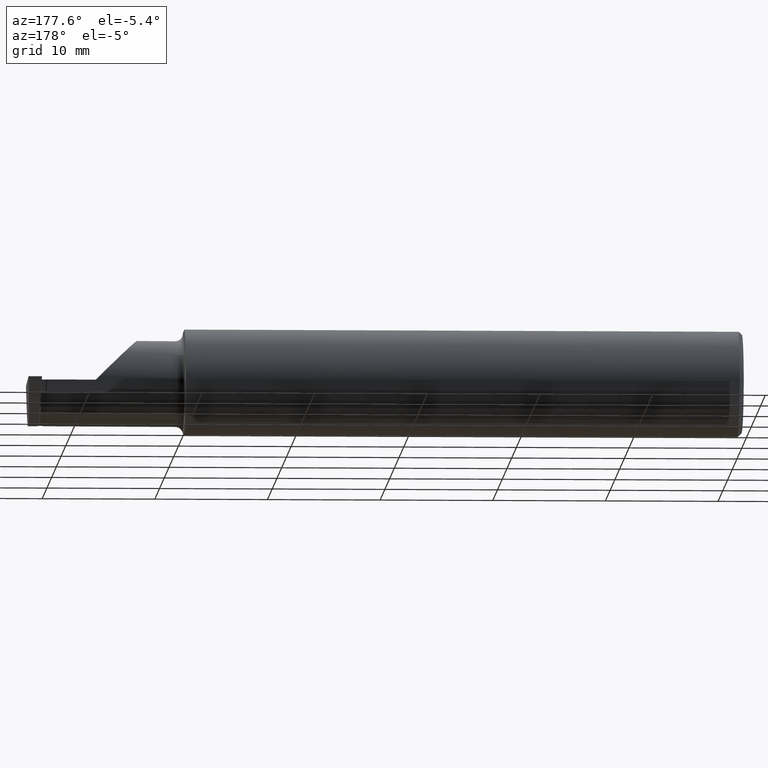
[diagram: clean part render]
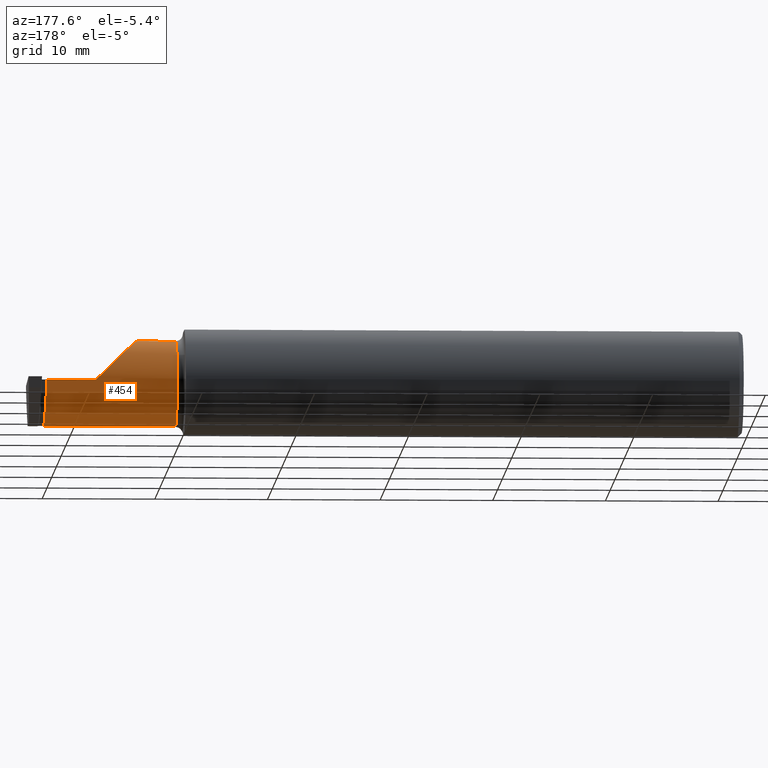
[diagram: same view with one face highlighted and labeled with its STEP entity id]
A machine part, auxiliary view. The second image highlights one B-rep face of the part: STEP entity #454.
In plain terms, the highlighted cylindrical surface (partial cylindrical patch) has radius 3.81 mm, axis along (-1, -0, -0).
Its self-contained STEP definition (entity closure, byte-faithful):
#7 = CARTESIAN_POINT ( 'NONE',  ( 2.436047627063565368, -0.008191913527186078098, -0.1301800458423393592 ) ) ;
#10 = VECTOR ( 'NONE', #952, 39.37007874015748143 ) ;
#13 = CARTESIAN_POINT ( 'NONE',  ( 2.436823271145520220, -0.06360485849426596172, -0.1500000000000001887 ) ) ;
#49 = CARTESIAN_POINT ( 'NONE',  ( 1.949999999999999956, -0.08334999999999996578, 0.1499999999999999667 ) ) ;
#55 = LINE ( 'NONE', #529, #10 ) ;
#56 =( BOUNDED_CURVE ( )  B_SPLINE_CURVE ( 3, ( #685, #1003, #273, #607 ),
 .UNSPECIFIED., .F., .T. ) 
 B_SPLINE_CURVE_WITH_KNOTS ( ( 4, 4 ),
 ( 0.000000000000000000, 1.570796326794896558 ),
 .UNSPECIFIED. ) 
 CURVE ( )  GEOMETRIC_REPRESENTATION_ITEM ( )  RATIONAL_B_SPLINE_CURVE ( ( 1.000000000000000000, 0.8047378541243649375, 0.8047378541243649375, 1.000000000000000000 ) ) 
 REPRESENTATION_ITEM ( '' )  );
#59 = DIRECTION ( 'NONE',  ( -1.000000000000000000, -0.000000000000000000, -0.000000000000000000 ) ) ;
#62 = CARTESIAN_POINT ( 'NONE',  ( 1.974999999999999867, -0.08334999999999996578, 0.1499999999999999667 ) ) ;
#73 = CARTESIAN_POINT ( 'NONE',  ( 1.974999999999999867, -0.08334999999999995191, -0.1499999999999999667 ) ) ;
#100 = DIRECTION ( 'NONE',  ( 0.000000000000000000, 0.000000000000000000, 1.000000000000000000 ) ) ;
#111 = EDGE_CURVE ( 'NONE', #1038, #402, #55, .T. ) ;
#130 = CIRCLE ( 'NONE', #925, 0.1499999999999999667 ) ;
#138 = CARTESIAN_POINT ( 'NONE',  ( 2.260000000000000231, 0.06664999999999998703, 2.939152317953647352E-17 ) ) ;
#145 = LINE ( 'NONE', #799, #532 ) ;
#153 = VERTEX_POINT ( 'NONE', #138 ) ;
#165 = CARTESIAN_POINT ( 'NONE',  ( 2.110000000000001208, -0.08334999999999996578, 0.1499999999999999667 ) ) ;
#182 = VERTEX_POINT ( 'NONE', #525 ) ;
#211 = CARTESIAN_POINT ( 'NONE',  ( 2.436802821149928633, -0.08335000000000178377, -0.1500000000000000500 ) ) ;
#227 = ORIENTED_EDGE ( 'NONE', *, *, #111, .T. ) ;
#229 = DIRECTION ( 'NONE',  ( 1.000000000000000000, 0.000000000000000000, 0.000000000000000000 ) ) ;
#230 = CARTESIAN_POINT ( 'NONE',  ( 2.435625600550964887, 0.008070056630586129251, -0.1193229045214244249 ) ) ;
#237 = CARTESIAN_POINT ( 'NONE',  ( 2.433917707009700226, 0.04676326156913000742, -0.07527901788944874051 ) ) ;
#247 = CARTESIAN_POINT ( 'NONE',  ( 2.436802821149928633, -0.08335000000000178377, -0.1500000000000000500 ) ) ;
#266 = ORIENTED_EDGE ( 'NONE', *, *, #686, .F. ) ;
#273 = CARTESIAN_POINT ( 'NONE',  ( 2.172132034355964691, 0.06665000000000000091, 0.08786796564403574761 ) ) ;
#305 = CARTESIAN_POINT ( 'NONE',  ( 2.433584062737284004, 0.05145648337727204424, -0.06650224088316901427 ) ) ;
#323 = EDGE_LOOP ( 'NONE', ( #1039, #227, #266, #728, #959, #588 ) ) ;
#340 = EDGE_CURVE ( 'NONE', #153, #182, #145, .T. ) ;
#343 = B_SPLINE_CURVE_WITH_KNOTS ( 'NONE', 3,
 ( #815, #476, #1037, #305, #237, #826, #406, #571, #230, #7, #637, #899, #13, #247 ),
 .UNSPECIFIED., .F., .F.,
 ( 4, 2, 2, 2, 2, 2, 4 ),
 ( 4.190616790185394939E-12, 0.001502808815335837482, 0.002254213220908447488, 0.003005617626481057927, 0.003757022032053668800, 0.004508426437626278371, 0.006011235248771500984 ),
 .UNSPECIFIED. ) ;
#402 = VERTEX_POINT ( 'NONE', #73 ) ;
#406 = CARTESIAN_POINT ( 'NONE',  ( 2.434778616767259596, 0.02964324779969526591, -0.09913906211511888666 ) ) ;
#407 = EDGE_CURVE ( 'NONE', #182, #1038, #343, .T. ) ;
#408 = VERTEX_POINT ( 'NONE', #165 ) ;
#431 = VECTOR ( 'NONE', #439, 39.37007874015748143 ) ;
#439 = DIRECTION ( 'NONE',  ( -1.000000000000000000, -0.000000000000000000, -0.000000000000000000 ) ) ;
#454 = ADVANCED_FACE ( 'NONE', ( #668 ), #507, .T. ) ;
#455 = CARTESIAN_POINT ( 'NONE',  ( 1.974999999999999867, -0.08334999999999996578, 0.000000000000000000 ) ) ;
#476 = CARTESIAN_POINT ( 'NONE',  ( 2.431759762771723565, 0.06665000002185876571, -0.01979751608576870228 ) ) ;
#507 = CYLINDRICAL_SURFACE ( 'NONE', #689, 0.1499999999999999667 ) ;
#525 = CARTESIAN_POINT ( 'NONE',  ( 2.431000000000000494, 0.06664999999999988989, 9.135099441613365556E-18 ) ) ;
#527 = DIRECTION ( 'NONE',  ( 0.000000000000000000, 0.000000000000000000, 1.000000000000000000 ) ) ;
#529 = CARTESIAN_POINT ( 'NONE',  ( 1.949999999999999956, -0.08334999999999995191, -0.1499999999999999667 ) ) ;
#532 = VECTOR ( 'NONE', #229, 39.37007874015748143 ) ;
#571 = CARTESIAN_POINT ( 'NONE',  ( 2.435340364421067605, 0.01578456786428816469, -0.1129971908489303400 ) ) ;
#581 = EDGE_CURVE ( 'NONE', #408, #153, #56, .T. ) ;
#587 = DIRECTION ( 'NONE',  ( -1.000000000000000000, -0.000000000000000000, -0.000000000000000000 ) ) ;
#588 = ORIENTED_EDGE ( 'NONE', *, *, #340, .T. ) ;
#607 = CARTESIAN_POINT ( 'NONE',  ( 2.260000000000000231, 0.06664999999999998703, 2.939152317953647352E-17 ) ) ;
#637 = CARTESIAN_POINT ( 'NONE',  ( 2.436195387879636964, -0.01680786726404270501, -0.1347941439950469944 ) ) ;
#668 = FACE_OUTER_BOUND ( 'NONE', #323, .T. ) ;
#685 = CARTESIAN_POINT ( 'NONE',  ( 2.110000000000001208, -0.08334999999999996578, 0.1499999999999999667 ) ) ;
#686 = EDGE_CURVE ( 'NONE', #884, #402, #130, .T. ) ;
#689 = AXIS2_PLACEMENT_3D ( 'NONE', #762, #587, #100 ) ;
#728 = ORIENTED_EDGE ( 'NONE', *, *, #1001, .F. ) ;
#762 = CARTESIAN_POINT ( 'NONE',  ( 1.949999999999999956, -0.08334999999999996578, 0.000000000000000000 ) ) ;
#799 = CARTESIAN_POINT ( 'NONE',  ( 1.949999999999999956, 0.06665000000000001479, 6.735557395310447447E-17 ) ) ;
#815 = CARTESIAN_POINT ( 'NONE',  ( 2.431000000000000494, 0.06664999999999988989, 9.135099441613365556E-18 ) ) ;
#826 = CARTESIAN_POINT ( 'NONE',  ( 2.434501685452550745, 0.03584079214514208911, -0.09159665080323803332 ) ) ;
#848 = LINE ( 'NONE', #49, #431 ) ;
#884 = VERTEX_POINT ( 'NONE', #62 ) ;
#899 = CARTESIAN_POINT ( 'NONE',  ( 2.436600921448460078, -0.04414771275001330708, -0.1461247665934777284 ) ) ;
#925 = AXIS2_PLACEMENT_3D ( 'NONE', #455, #59, #527 ) ;
#952 = DIRECTION ( 'NONE',  ( -1.000000000000000000, -0.000000000000000000, -0.000000000000000000 ) ) ;
#959 = ORIENTED_EDGE ( 'NONE', *, *, #581, .T. ) ;
#1001 = EDGE_CURVE ( 'NONE', #408, #884, #848, .T. ) ;
#1003 = CARTESIAN_POINT ( 'NONE',  ( 2.110000000000001208, 0.004517965644035767080, 0.1499999999999999667 ) ) ;
#1037 = CARTESIAN_POINT ( 'NONE',  ( 2.432485381520250289, 0.06268190983465465882, -0.03944648681647396765 ) ) ;
#1038 = VERTEX_POINT ( 'NONE', #211 ) ;
#1039 = ORIENTED_EDGE ( 'NONE', *, *, #407, .T. ) ;